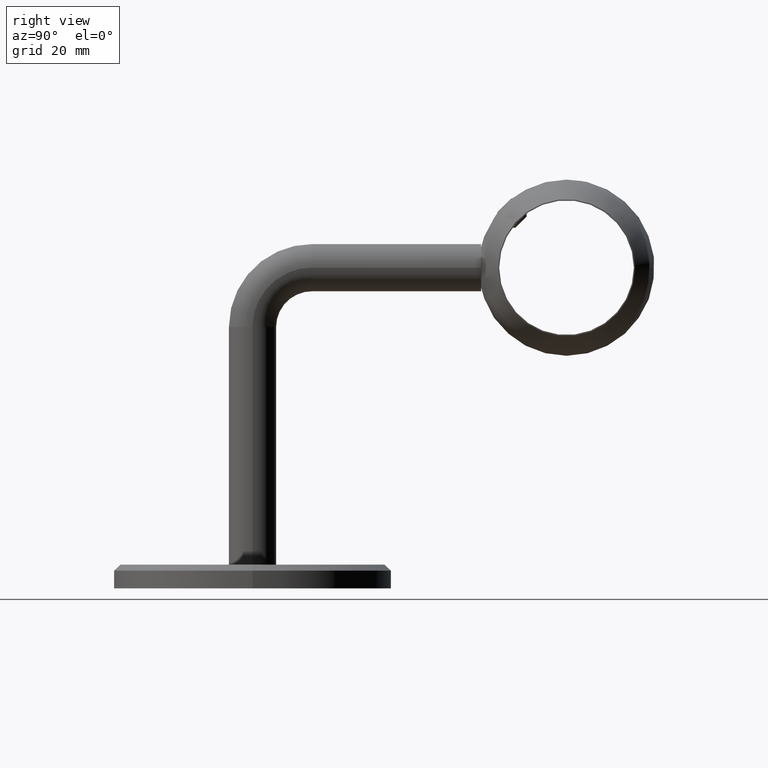
[diagram: clean part render]
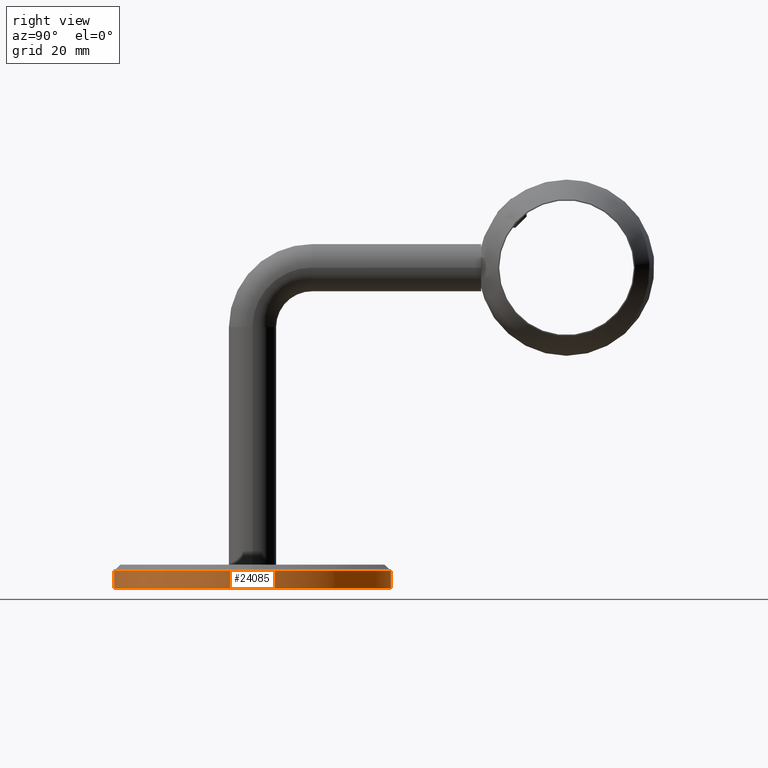
[diagram: same view with one face highlighted and labeled with its STEP entity id]
A machine part, right view. The second image highlights one B-rep face of the part: STEP entity #24085.
In plain terms, the highlighted cylindrical surface (bore or boss wall) has radius 35 mm, axis along (-0, -0, -1).
Its self-contained STEP definition (entity closure, byte-faithful):
#15 = AXIS2_PLACEMENT_3D ( 'NONE', #28259, #15044, #1827 ) ;
#919 = DIRECTION ( 'NONE',  ( 1.000000000000000000, 0.000000000000000000, 0.000000000000000000 ) ) ;
#1827 = DIRECTION ( 'NONE',  ( 1.000000000000000000, 0.000000000000000000, 0.000000000000000000 ) ) ;
#2384 = CARTESIAN_POINT ( 'NONE',  ( 35.00000000000000711, 0.000000000000000000, 0.000000000000000000 ) ) ;
#3217 = CIRCLE ( 'NONE', #15, 35.00000000000000711 ) ;
#6690 = FACE_OUTER_BOUND ( 'NONE', #25705, .T. ) ;
#7060 = DIRECTION ( 'NONE',  ( -1.000000000000000000, 0.000000000000000000, 0.000000000000000000 ) ) ;
#7445 = CARTESIAN_POINT ( 'NONE',  ( 0.000000000000000000, 0.000000000000000000, 6.000000000000000000 ) ) ;
#7772 = CARTESIAN_POINT ( 'NONE',  ( 0.000000000000000000, 0.000000000000000000, 4.500000000000019540 ) ) ;
#7931 = AXIS2_PLACEMENT_3D ( 'NONE', #7772, #18914, #919 ) ;
#8987 = EDGE_CURVE ( 'NONE', #25515, #25515, #16431, .T. ) ;
#11560 = CARTESIAN_POINT ( 'NONE',  ( 35.00000000000000711, 0.000000000000000000, 4.500000000000019540 ) ) ;
#11583 = EDGE_CURVE ( 'NONE', #23133, #23133, #3217, .T. ) ;
#15011 = FACE_OUTER_BOUND ( 'NONE', #25463, .T. ) ;
#15044 = DIRECTION ( 'NONE',  ( 0.000000000000000000, 0.000000000000000000, 1.000000000000000000 ) ) ;
#16431 = CIRCLE ( 'NONE', #7931, 35.00000000000000711 ) ;
#17395 = AXIS2_PLACEMENT_3D ( 'NONE', #7445, #18394, #7060 ) ;
#18394 = DIRECTION ( 'NONE',  ( -0.000000000000000000, -0.000000000000000000, -1.000000000000000000 ) ) ;
#18914 = DIRECTION ( 'NONE',  ( 0.000000000000000000, 0.000000000000000000, -1.000000000000000000 ) ) ;
#23133 = VERTEX_POINT ( 'NONE', #2384 ) ;
#24085 = ADVANCED_FACE ( 'NONE', ( #15011, #6690 ), #25316, .T. ) ;
#24608 = ORIENTED_EDGE ( 'NONE', *, *, #11583, .T. ) ;
#25316 = CYLINDRICAL_SURFACE ( 'NONE', #17395, 35.00000000000000711 ) ;
#25463 = EDGE_LOOP ( 'NONE', ( #27314 ) ) ;
#25515 = VERTEX_POINT ( 'NONE', #11560 ) ;
#25705 = EDGE_LOOP ( 'NONE', ( #24608 ) ) ;
#27314 = ORIENTED_EDGE ( 'NONE', *, *, #8987, .T. ) ;
#28259 = CARTESIAN_POINT ( 'NONE',  ( 0.000000000000000000, 0.000000000000000000, 0.000000000000000000 ) ) ;